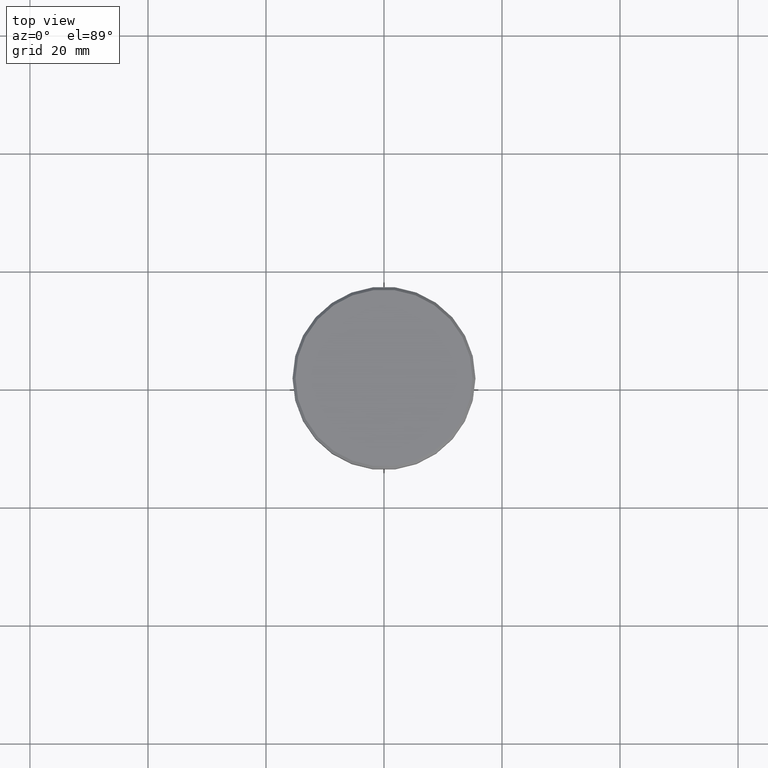
[diagram: clean part render]
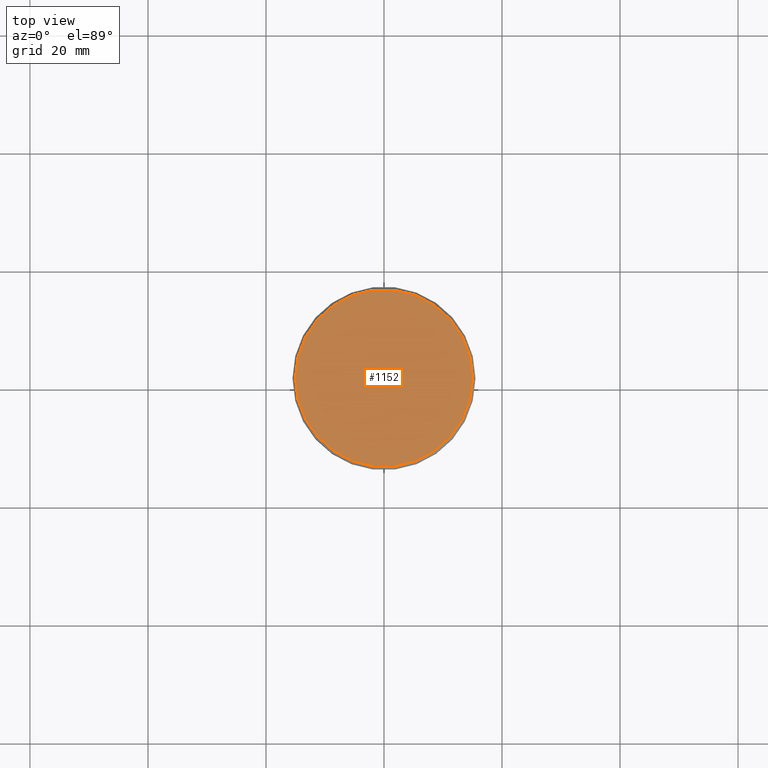
[diagram: same view with one face highlighted and labeled with its STEP entity id]
A machine part, top view. The second image highlights one B-rep face of the part: STEP entity #1152.
In plain terms, the highlighted planar face has unit normal (0, -0, 1).
Its self-contained STEP definition (entity closure, byte-faithful):
#266 = CARTESIAN_POINT ( 'NONE',  ( 0.000000000000000000, 0.000000000000000000, 0.000000000000000000 ) ) ;
#293 = DIRECTION ( 'NONE',  ( 1.000000000000000000, 0.000000000000000000, 0.000000000000000000 ) ) ;
#369 = CIRCLE ( 'NONE', #594, 15.00000000000002665 ) ;
#432 = AXIS2_PLACEMENT_3D ( 'NONE', #779, #851, #1041 ) ;
#433 = DIRECTION ( 'NONE',  ( 1.000000000000000000, 0.000000000000000000, 0.000000000000000000 ) ) ;
#439 = PLANE ( 'NONE',  #987 ) ;
#454 = CARTESIAN_POINT ( 'NONE',  ( 0.000000000000000000, 0.000000000000000000, 0.000000000000000000 ) ) ;
#461 = VERTEX_POINT ( 'NONE', #1030 ) ;
#470 = ORIENTED_EDGE ( 'NONE', *, *, #1111, .T. ) ;
#475 = EDGE_LOOP ( 'NONE', ( #600, #470 ) ) ;
#495 = EDGE_CURVE ( 'NONE', #673, #461, #369, .T. ) ;
#564 = DIRECTION ( 'NONE',  ( -0.000000000000000000, -0.000000000000000000, 1.000000000000000000 ) ) ;
#594 = AXIS2_PLACEMENT_3D ( 'NONE', #454, #564, #293 ) ;
#600 = ORIENTED_EDGE ( 'NONE', *, *, #495, .T. ) ;
#673 = VERTEX_POINT ( 'NONE', #1054 ) ;
#779 = CARTESIAN_POINT ( 'NONE',  ( 0.000000000000000000, 0.000000000000000000, 0.000000000000000000 ) ) ;
#851 = DIRECTION ( 'NONE',  ( -0.000000000000000000, -0.000000000000000000, 1.000000000000000000 ) ) ;
#941 = CIRCLE ( 'NONE', #432, 15.00000000000002665 ) ;
#987 = AXIS2_PLACEMENT_3D ( 'NONE', #266, #1172, #433 ) ;
#1030 = CARTESIAN_POINT ( 'NONE',  ( 15.00000000000002665, 1.867586368699715348E-15, 0.000000000000000000 ) ) ;
#1041 = DIRECTION ( 'NONE',  ( 1.000000000000000000, 0.000000000000000000, 0.000000000000000000 ) ) ;
#1054 = CARTESIAN_POINT ( 'NONE',  ( -15.00000000000002665, 0.000000000000000000, 0.000000000000000000 ) ) ;
#1073 = FACE_OUTER_BOUND ( 'NONE', #475, .T. ) ;
#1111 = EDGE_CURVE ( 'NONE', #461, #673, #941, .T. ) ;
#1152 = ADVANCED_FACE ( 'NONE', ( #1073 ), #439, .T. ) ;
#1172 = DIRECTION ( 'NONE',  ( 0.000000000000000000, -0.000000000000000000, 1.000000000000000000 ) ) ;